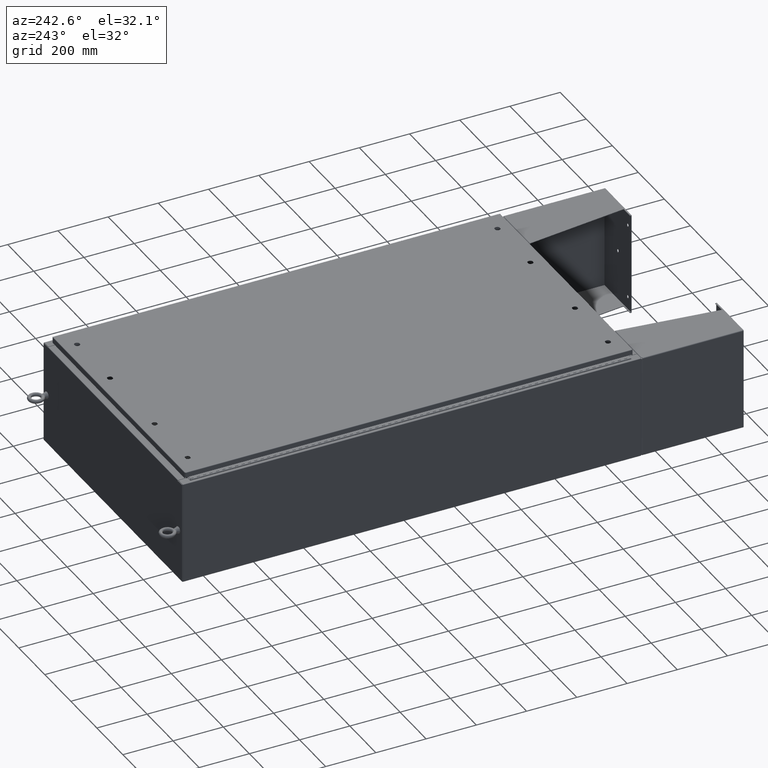
[diagram: clean part render]
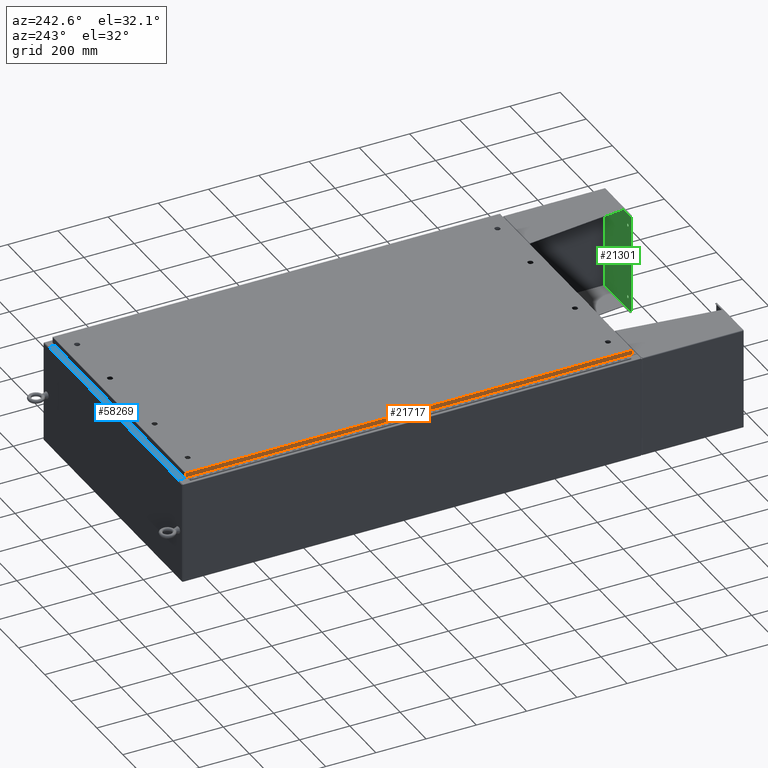
[diagram: same view with three faces highlighted in distinct colors, each labeled with its STEP entity id]
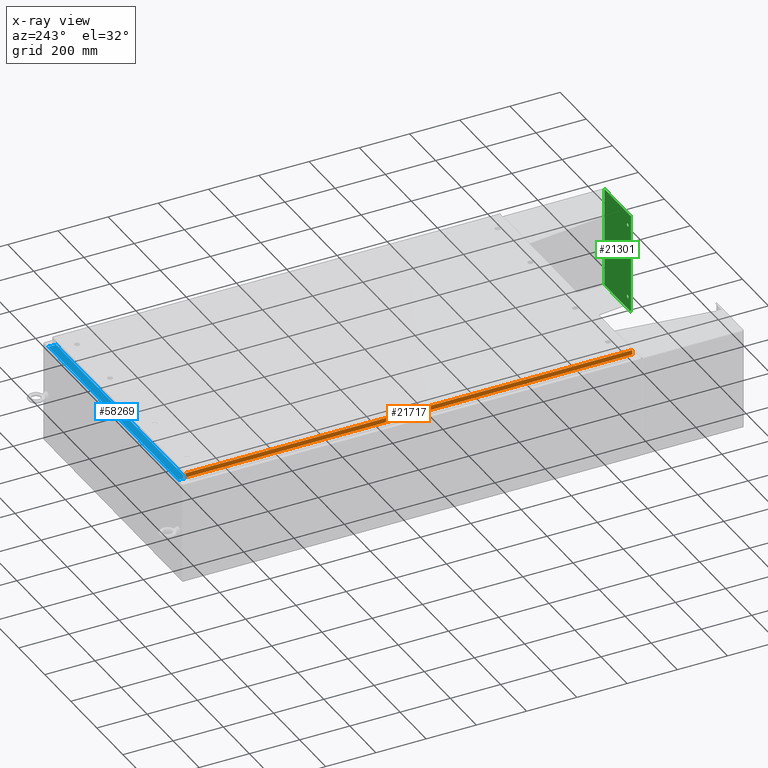
[diagram: x-ray of the same camera — body ghosted, the three highlighted faces saturated]
A machine part, auxiliary view with three faces highlighted in distinct colors.
The next image is the same camera in x-ray (body ghosted, the three faces saturated) — at least one of them is partly hidden behind the body in this view.
Their STEP definitions:

[orange] entity #21717 — the highlighted planar face has unit normal (1, -0, -0).
#2064 = VECTOR ( 'NONE', #27594, 39.37007874015748100 ) ;
#4602 = LINE ( 'NONE', #16768, #6382 ) ;
#6077 = CARTESIAN_POINT ( 'NONE',  ( -20.07800000000000700, -35.00515786437627200, -0.08769999999999540700 ) ) ;
#6382 = VECTOR ( 'NONE', #54962, 39.37007874015748100 ) ;
#10173 = ORIENTED_EDGE ( 'NONE', *, *, #28055, .F. ) ;
#12767 = EDGE_CURVE ( 'NONE', #69870, #38765, #66352, .T. ) ;
#15789 = EDGE_LOOP ( 'NONE', ( #10173, #41677, #29159, #32635 ) ) ;
#16768 = CARTESIAN_POINT ( 'NONE',  ( -20.07800000000001000, -35.09400000000000100, -0.08769999999999544800 ) ) ;
#19142 = FACE_OUTER_BOUND ( 'NONE', #15789, .T. ) ;
#21717 = ADVANCED_FACE ( 'NONE', ( #19142 ), #68313, .F. ) ;
#22065 = CARTESIAN_POINT ( 'NONE',  ( -20.07800000000000700, 35.00515786437627200, 3.665387453281227800E-013 ) ) ;
#23921 = VERTEX_POINT ( 'NONE', #6077 ) ;
#26871 = CARTESIAN_POINT ( 'NONE',  ( -20.07800000000001400, -35.00515786437626500, -0.7949999999999997100 ) ) ;
#27356 = AXIS2_PLACEMENT_3D ( 'NONE', #56727, #40573, #53701 ) ;
#27594 = DIRECTION ( 'NONE',  ( -6.068244883885632300E-015, 6.982962677686265900E-015, -1.000000000000000000 ) ) ;
#27832 = VECTOR ( 'NONE', #63371, 39.37007874015748100 ) ;
#28055 = EDGE_CURVE ( 'NONE', #66330, #23921, #4602, .T. ) ;
#29159 = ORIENTED_EDGE ( 'NONE', *, *, #12767, .F. ) ;
#31080 = CARTESIAN_POINT ( 'NONE',  ( -20.07800000000000700, 35.00515786437627200, -0.08769999999999544800 ) ) ;
#32581 = DIRECTION ( 'NONE',  ( 6.227498703286631500E-017, 1.000000000000000000, 1.226038807209555900E-016 ) ) ;
#32635 = ORIENTED_EDGE ( 'NONE', *, *, #61968, .F. ) ;
#38765 = VERTEX_POINT ( 'NONE', #48203 ) ;
#40573 = DIRECTION ( 'NONE',  ( 1.000000000000000000, -6.227498703286557600E-017, -6.068244883885633100E-015 ) ) ;
#41677 = ORIENTED_EDGE ( 'NONE', *, *, #51256, .T. ) ;
#43688 = CARTESIAN_POINT ( 'NONE',  ( -20.07800000000001400, -35.09400000000000100, -0.7949999999999997100 ) ) ;
#47400 = LINE ( 'NONE', #22065, #2064 ) ;
#48203 = CARTESIAN_POINT ( 'NONE',  ( -20.07800000000001000, 35.00515786437628000, -0.7949999999999911600 ) ) ;
#51256 = EDGE_CURVE ( 'NONE', #66330, #38765, #47400, .T. ) ;
#51585 = VECTOR ( 'NONE', #32581, 39.37007874015748100 ) ;
#53701 = DIRECTION ( 'NONE',  ( -6.068244883885633100E-015, 0.0000000000000000000, -1.000000000000000000 ) ) ;
#54962 = DIRECTION ( 'NONE',  ( -6.227498703286557600E-017, -1.000000000000000000, 3.771645152722873400E-031 ) ) ;
#56727 = CARTESIAN_POINT ( 'NONE',  ( -20.07800000000000700, 1.250357189645875400E-015, 1.220990344346673700E-013 ) ) ;
#56848 = LINE ( 'NONE', #57823, #27832 ) ;
#57823 = CARTESIAN_POINT ( 'NONE',  ( -20.07800000000001000, -35.00515786437627200, -0.07469999999999954500 ) ) ;
#61968 = EDGE_CURVE ( 'NONE', #23921, #69870, #56848, .T. ) ;
#63371 = DIRECTION ( 'NONE',  ( -6.068244883885632300E-015, 6.982962677686265900E-015, -1.000000000000000000 ) ) ;
#66330 = VERTEX_POINT ( 'NONE', #31080 ) ;
#66352 = LINE ( 'NONE', #43688, #51585 ) ;
#68313 = PLANE ( 'NONE',  #27356 ) ;
#69870 = VERTEX_POINT ( 'NONE', #26871 ) ;

[blue] entity #58269 — the highlighted planar face has unit normal (0, 0, 1).
#5469 = VECTOR ( 'NONE', #68480, 39.37007874015748100 ) ;
#8491 = VECTOR ( 'NONE', #27060, 39.37007874015748100 ) ;
#10189 = LINE ( 'NONE', #65379, #8491 ) ;
#10268 = VECTOR ( 'NONE', #15178, 39.37007874015748100 ) ;
#15178 = DIRECTION ( 'NONE',  ( -0.0000000000000000000, 1.000000000000000000, -3.566381192773190000E-015 ) ) ;
#15859 = VERTEX_POINT ( 'NONE', #59715 ) ;
#18583 = EDGE_CURVE ( 'NONE', #15859, #33192, #53467, .T. ) ;
#20004 = PLANE ( 'NONE',  #58195 ) ;
#22705 = DIRECTION ( 'NONE',  ( -1.000000000000000000, 0.0000000000000000000, 0.0000000000000000000 ) ) ;
#25403 = ORIENTED_EDGE ( 'NONE', *, *, #68820, .F. ) ;
#25881 = CARTESIAN_POINT ( 'NONE',  ( -19.63720000000000400, -0.07469999999999973900, 8.000000000000001800 ) ) ;
#27060 = DIRECTION ( 'NONE',  ( -0.0000000000000000000, -1.000000000000000000, 2.674785894579892700E-015 ) ) ;
#27128 = VERTEX_POINT ( 'NONE', #35438 ) ;
#28236 = EDGE_CURVE ( 'NONE', #42771, #27128, #63682, .T. ) ;
#28430 = ORIENTED_EDGE ( 'NONE', *, *, #28236, .T. ) ;
#31049 = CARTESIAN_POINT ( 'NONE',  ( 1.950452754576713000E-018, 2.852545452309695200E-014, 8.000000000000001800 ) ) ;
#33192 = VERTEX_POINT ( 'NONE', #49960 ) ;
#35438 = CARTESIAN_POINT ( 'NONE',  ( -19.63720000000000400, -0.08770000000000081900, 8.000000000000001800 ) ) ;
#36582 = DIRECTION ( 'NONE',  ( 0.0000000000000000000, -1.000000000000000000, 3.566381192773190000E-015 ) ) ;
#39352 = LINE ( 'NONE', #25881, #10268 ) ;
#40776 = VECTOR ( 'NONE', #22705, 39.37007874015748100 ) ;
#42771 = VERTEX_POINT ( 'NONE', #64046 ) ;
#45108 = ORIENTED_EDGE ( 'NONE', *, *, #61602, .F. ) ;
#49576 = FACE_OUTER_BOUND ( 'NONE', #65201, .T. ) ;
#49960 = CARTESIAN_POINT ( 'NONE',  ( -19.63720000000000400, -1.287300000000000600, 8.000000000000007100 ) ) ;
#51773 = CARTESIAN_POINT ( 'NONE',  ( 19.63720000000000400, -1.287300000000001200, 8.000000000000007100 ) ) ;
#53467 = LINE ( 'NONE', #51773, #40776 ) ;
#54004 = ORIENTED_EDGE ( 'NONE', *, *, #18583, .F. ) ;
#57283 = CARTESIAN_POINT ( 'NONE',  ( 4.390546750099863900E-018, -0.08770000000000081900, 8.000000000000001800 ) ) ;
#58195 = AXIS2_PLACEMENT_3D ( 'NONE', #31049, #69468, #36582 ) ;
#58269 = ADVANCED_FACE ( 'NONE', ( #49576 ), #20004, .T. ) ;
#59715 = CARTESIAN_POINT ( 'NONE',  ( 19.63720000000000400, -1.287300000000001200, 8.000000000000005300 ) ) ;
#61602 = EDGE_CURVE ( 'NONE', #33192, #27128, #39352, .T. ) ;
#63682 = LINE ( 'NONE', #57283, #5469 ) ;
#64046 = CARTESIAN_POINT ( 'NONE',  ( 19.63720000000000400, -0.08770000000000047200, 8.000000000000001800 ) ) ;
#65201 = EDGE_LOOP ( 'NONE', ( #45108, #54004, #25403, #28430 ) ) ;
#65379 = CARTESIAN_POINT ( 'NONE',  ( 19.63720000000000400, -1.300299999999999800, 8.000000000000005300 ) ) ;
#68480 = DIRECTION ( 'NONE',  ( -1.000000000000000000, -2.782319265133790500E-017, 9.922811099463672500E-032 ) ) ;
#68820 = EDGE_CURVE ( 'NONE', #42771, #15859, #10189, .T. ) ;
#69468 = DIRECTION ( 'NONE',  ( 0.0000000000000000000, 3.566381192773190000E-015, 1.000000000000000000 ) ) ;

[green] entity #21301 — the highlighted planar face has unit normal (0, -1, 0).
#141 = VERTEX_POINT ( 'NONE', #7146 ) ;
#942 = VECTOR ( 'NONE', #58806, 39.37007874015748100 ) ;
#1240 = AXIS2_PLACEMENT_3D ( 'NONE', #36242, #3395, #41704 ) ;
#2401 = EDGE_CURVE ( 'NONE', #17858, #141, #69909, .T. ) ;
#2672 = LINE ( 'NONE', #9601, #942 ) ;
#2806 = AXIS2_PLACEMENT_3D ( 'NONE', #55203, #22433, #60697 ) ;
#3395 = DIRECTION ( 'NONE',  ( 0.0000000000000000000, 0.0000000000000000000, 1.000000000000000000 ) ) ;
#5545 = CARTESIAN_POINT ( 'NONE',  ( -7.878999999999998700, -4.000000000000000000, 0.0000000000000000000 ) ) ;
#5655 = ORIENTED_EDGE ( 'NONE', *, *, #70338, .T. ) ;
#5681 = CARTESIAN_POINT ( 'NONE',  ( -5.878999999999999600, -2.999999999999999600, 0.0000000000000000000 ) ) ;
#5854 = EDGE_LOOP ( 'NONE', ( #6429, #70323 ) ) ;
#6429 = ORIENTED_EDGE ( 'NONE', *, *, #2401, .T. ) ;
#6760 = VECTOR ( 'NONE', #23483, 39.37007874015748100 ) ;
#7146 = CARTESIAN_POINT ( 'NONE',  ( 5.628999999999999600, -2.999999999999999600, 0.0000000000000000000 ) ) ;
#8224 = CARTESIAN_POINT ( 'NONE',  ( 0.2500000000000000000, 0.0000000000000000000, 0.0000000000000000000 ) ) ;
#8482 = LINE ( 'NONE', #40747, #6760 ) ;
#8905 = DIRECTION ( 'NONE',  ( -0.0000000000000000000, -1.000000000000000000, -0.0000000000000000000 ) ) ;
#9601 = CARTESIAN_POINT ( 'NONE',  ( -7.878999999999998700, 4.000000000000000000, 0.0000000000000000000 ) ) ;
#11198 = EDGE_LOOP ( 'NONE', ( #60668, #5655, #70574, #39619 ) ) ;
#11211 = DIRECTION ( 'NONE',  ( 1.000000000000000000, 0.0000000000000000000, 0.0000000000000000000 ) ) ;
#11755 = EDGE_CURVE ( 'NONE', #55272, #68581, #20162, .T. ) ;
#11794 = AXIS2_PLACEMENT_3D ( 'NONE', #29511, #25476, #62558 ) ;
#13321 = VERTEX_POINT ( 'NONE', #47367 ) ;
#13735 = VERTEX_POINT ( 'NONE', #8224 ) ;
#14330 = DIRECTION ( 'NONE',  ( 1.000000000000000000, 0.0000000000000000000, 0.0000000000000000000 ) ) ;
#14398 = CARTESIAN_POINT ( 'NONE',  ( -7.878999999999998700, -4.000000000000000000, 0.0000000000000000000 ) ) ;
#16388 = EDGE_CURVE ( 'NONE', #33449, #19159, #8482, .T. ) ;
#17858 = VERTEX_POINT ( 'NONE', #60261 ) ;
#19159 = VERTEX_POINT ( 'NONE', #58093 ) ;
#20162 = CIRCLE ( 'NONE', #70064, 0.2499999999999998100 ) ;
#20659 = LINE ( 'NONE', #14398, #54910 ) ;
#21186 = EDGE_CURVE ( 'NONE', #141, #17858, #38983, .T. ) ;
#21301 = ADVANCED_FACE ( 'NONE', ( #43142, #59401, #57667, #28644 ), #23778, .F. ) ;
#22433 = DIRECTION ( 'NONE',  ( 0.0000000000000000000, 0.0000000000000000000, 1.000000000000000000 ) ) ;
#23483 = DIRECTION ( 'NONE',  ( 0.0000000000000000000, 1.000000000000000000, 0.0000000000000000000 ) ) ;
#23778 = PLANE ( 'NONE',  #55706 ) ;
#23982 = CARTESIAN_POINT ( 'NONE',  ( -5.628999999999999600, -2.999999999999999600, 0.0000000000000000000 ) ) ;
#25294 = CIRCLE ( 'NONE', #1240, 0.2500000000000000000 ) ;
#25476 = DIRECTION ( 'NONE',  ( -0.0000000000000000000, -0.0000000000000000000, -1.000000000000000000 ) ) ;
#28644 = FACE_BOUND ( 'NONE', #5854, .T. ) ;
#29511 = CARTESIAN_POINT ( 'NONE',  ( 5.878999999999999600, -2.999999999999999600, 0.0000000000000000000 ) ) ;
#31235 = AXIS2_PLACEMENT_3D ( 'NONE', #5681, #43878, #11211 ) ;
#33254 = CARTESIAN_POINT ( 'NONE',  ( 5.878999999999999600, -2.999999999999999600, 0.0000000000000000000 ) ) ;
#33449 = VERTEX_POINT ( 'NONE', #36164 ) ;
#36164 = CARTESIAN_POINT ( 'NONE',  ( 7.879000000000000400, -4.000000000000000000, 0.0000000000000000000 ) ) ;
#36242 = CARTESIAN_POINT ( 'NONE',  ( 0.0000000000000000000, 0.0000000000000000000, 0.0000000000000000000 ) ) ;
#36933 = EDGE_CURVE ( 'NONE', #13735, #49259, #25294, .T. ) ;
#38983 = CIRCLE ( 'NONE', #11794, 0.2499999999999998100 ) ;
#39619 = ORIENTED_EDGE ( 'NONE', *, *, #64134, .T. ) ;
#40435 = LINE ( 'NONE', #46970, #67890 ) ;
#40747 = CARTESIAN_POINT ( 'NONE',  ( 7.879000000000000400, -4.000000000000000000, 0.0000000000000000000 ) ) ;
#41704 = DIRECTION ( 'NONE',  ( 1.000000000000000000, 0.0000000000000000000, 0.0000000000000000000 ) ) ;
#41767 = DIRECTION ( 'NONE',  ( -0.0000000000000000000, -0.0000000000000000000, -1.000000000000000000 ) ) ;
#42016 = ORIENTED_EDGE ( 'NONE', *, *, #11755, .F. ) ;
#42601 = DIRECTION ( 'NONE',  ( -1.000000000000000000, 0.0000000000000000000, -0.0000000000000000000 ) ) ;
#42743 = DIRECTION ( 'NONE',  ( 0.0000000000000000000, 0.0000000000000000000, -1.000000000000000000 ) ) ;
#42760 = DIRECTION ( 'NONE',  ( -1.000000000000000000, 0.0000000000000000000, 0.0000000000000000000 ) ) ;
#43142 = FACE_OUTER_BOUND ( 'NONE', #11198, .T. ) ;
#43325 = CIRCLE ( 'NONE', #2806, 0.2500000000000000000 ) ;
#43878 = DIRECTION ( 'NONE',  ( 0.0000000000000000000, 0.0000000000000000000, 1.000000000000000000 ) ) ;
#44351 = VERTEX_POINT ( 'NONE', #5545 ) ;
#46382 = CARTESIAN_POINT ( 'NONE',  ( -6.128999999999998700, -2.999999999999999600, 0.0000000000000000000 ) ) ;
#46970 = CARTESIAN_POINT ( 'NONE',  ( -7.878999999999998700, -4.000000000000000000, 0.0000000000000000000 ) ) ;
#47367 = CARTESIAN_POINT ( 'NONE',  ( -7.878999999999998700, 4.000000000000000000, 0.0000000000000000000 ) ) ;
#47403 = EDGE_LOOP ( 'NONE', ( #47813, #68616 ) ) ;
#47813 = ORIENTED_EDGE ( 'NONE', *, *, #36933, .F. ) ;
#49031 = EDGE_LOOP ( 'NONE', ( #42016, #62141 ) ) ;
#49259 = VERTEX_POINT ( 'NONE', #58164 ) ;
#50069 = EDGE_CURVE ( 'NONE', #49259, #13735, #43325, .T. ) ;
#50103 = DIRECTION ( 'NONE',  ( 0.0000000000000000000, 0.0000000000000000000, 1.000000000000000000 ) ) ;
#53250 = CIRCLE ( 'NONE', #31235, 0.2499999999999998100 ) ;
#54687 = DIRECTION ( 'NONE',  ( 1.000000000000000000, 0.0000000000000000000, 0.0000000000000000000 ) ) ;
#54910 = VECTOR ( 'NONE', #8905, 39.37007874015748100 ) ;
#55203 = CARTESIAN_POINT ( 'NONE',  ( 0.0000000000000000000, 0.0000000000000000000, 0.0000000000000000000 ) ) ;
#55272 = VERTEX_POINT ( 'NONE', #23982 ) ;
#55706 = AXIS2_PLACEMENT_3D ( 'NONE', #56254, #42743, #42601 ) ;
#56254 = CARTESIAN_POINT ( 'NONE',  ( 7.879000000000000400, 4.000000000000000000, 0.0000000000000000000 ) ) ;
#57667 = FACE_BOUND ( 'NONE', #49031, .T. ) ;
#58093 = CARTESIAN_POINT ( 'NONE',  ( 7.879000000000000400, 4.000000000000000000, 0.0000000000000000000 ) ) ;
#58164 = CARTESIAN_POINT ( 'NONE',  ( -0.2500000000000000000, 3.061616997868383000E-017, 0.0000000000000000000 ) ) ;
#58508 = EDGE_CURVE ( 'NONE', #68581, #55272, #53250, .T. ) ;
#58806 = DIRECTION ( 'NONE',  ( -1.000000000000000000, -0.0000000000000000000, -0.0000000000000000000 ) ) ;
#59401 = FACE_BOUND ( 'NONE', #47403, .T. ) ;
#60261 = CARTESIAN_POINT ( 'NONE',  ( 6.128999999999998700, -2.999999999999999600, 0.0000000000000000000 ) ) ;
#60668 = ORIENTED_EDGE ( 'NONE', *, *, #16388, .T. ) ;
#60697 = DIRECTION ( 'NONE',  ( 1.000000000000000000, 0.0000000000000000000, 0.0000000000000000000 ) ) ;
#62141 = ORIENTED_EDGE ( 'NONE', *, *, #58508, .F. ) ;
#62558 = DIRECTION ( 'NONE',  ( -1.000000000000000000, 0.0000000000000000000, 0.0000000000000000000 ) ) ;
#62572 = CARTESIAN_POINT ( 'NONE',  ( -5.878999999999999600, -2.999999999999999600, 0.0000000000000000000 ) ) ;
#64134 = EDGE_CURVE ( 'NONE', #44351, #33449, #40435, .T. ) ;
#67890 = VECTOR ( 'NONE', #14330, 39.37007874015748100 ) ;
#68581 = VERTEX_POINT ( 'NONE', #46382 ) ;
#68616 = ORIENTED_EDGE ( 'NONE', *, *, #50069, .F. ) ;
#69909 = CIRCLE ( 'NONE', #70013, 0.2499999999999998100 ) ;
#70013 = AXIS2_PLACEMENT_3D ( 'NONE', #33254, #41767, #42760 ) ;
#70064 = AXIS2_PLACEMENT_3D ( 'NONE', #62572, #50103, #54687 ) ;
#70243 = EDGE_CURVE ( 'NONE', #13321, #44351, #20659, .T. ) ;
#70323 = ORIENTED_EDGE ( 'NONE', *, *, #21186, .T. ) ;
#70338 = EDGE_CURVE ( 'NONE', #19159, #13321, #2672, .T. ) ;
#70574 = ORIENTED_EDGE ( 'NONE', *, *, #70243, .T. ) ;